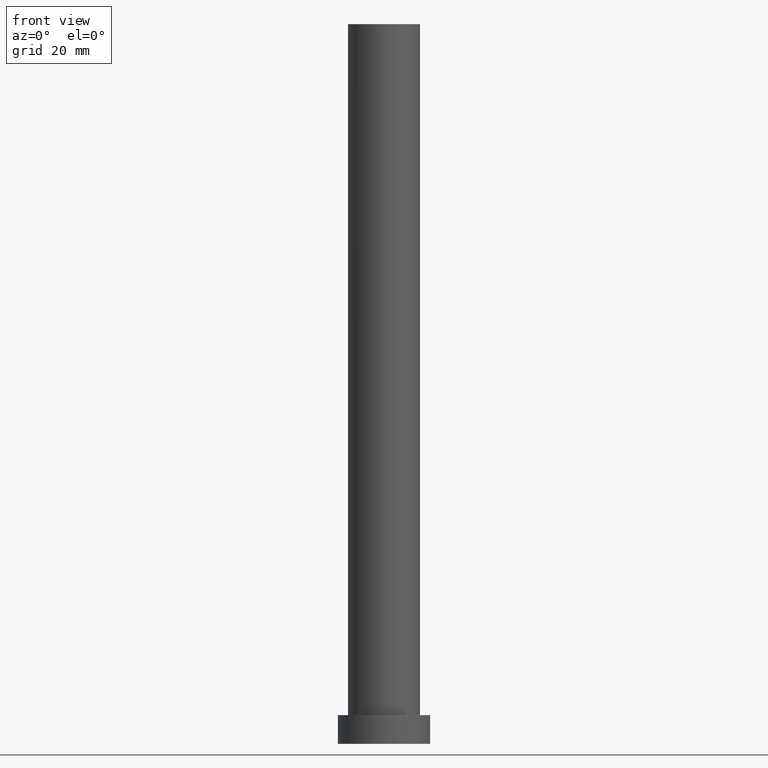
[diagram: clean part render]
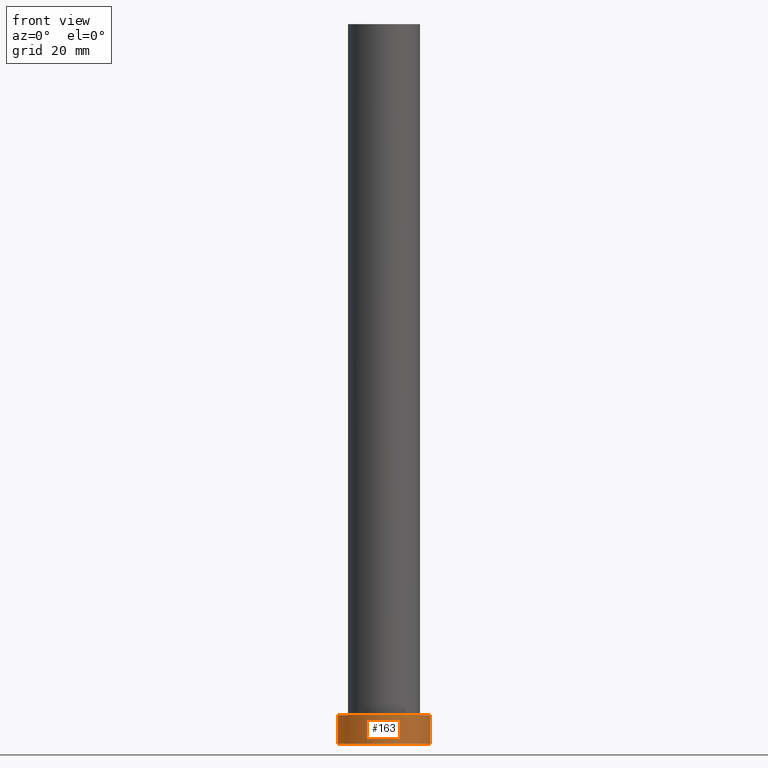
[diagram: same view with one face highlighted and labeled with its STEP entity id]
A machine part, front view. The second image highlights one B-rep face of the part: STEP entity #163.
In plain terms, the highlighted cylindrical surface (partial cylindrical patch) has radius 16 mm, axis along (-0, -0, -1).
Its self-contained STEP definition (entity closure, byte-faithful):
#12 = VERTEX_POINT ( 'NONE', #180 ) ;
#18 = VECTOR ( 'NONE', #109, 1000.000000000000000 ) ;
#34 = LINE ( 'NONE', #94, #18 ) ;
#36 = CARTESIAN_POINT ( 'NONE',  ( 16.00000000000000000, 1.959434878635765131E-15, 10.00000000000000000 ) ) ;
#37 = CIRCLE ( 'NONE', #245, 16.00000000000000000 ) ;
#38 = DIRECTION ( 'NONE',  ( 0.000000000000000000, 0.000000000000000000, 1.000000000000000000 ) ) ;
#52 = CARTESIAN_POINT ( 'NONE',  ( 0.000000000000000000, 0.000000000000000000, 10.00000000000000000 ) ) ;
#54 = CYLINDRICAL_SURFACE ( 'NONE', #252, 16.00000000000000000 ) ;
#59 = AXIS2_PLACEMENT_3D ( 'NONE', #212, #38, #73 ) ;
#62 = VERTEX_POINT ( 'NONE', #95 ) ;
#70 = DIRECTION ( 'NONE',  ( 1.000000000000000000, 0.000000000000000000, 0.000000000000000000 ) ) ;
#73 = DIRECTION ( 'NONE',  ( 1.000000000000000000, 0.000000000000000000, 0.000000000000000000 ) ) ;
#79 = EDGE_CURVE ( 'NONE', #62, #89, #37, .T. ) ;
#89 = VERTEX_POINT ( 'NONE', #36 ) ;
#94 = CARTESIAN_POINT ( 'NONE',  ( 16.00000000000000000, 1.959434878635765131E-15, 10.00000000000000000 ) ) ;
#95 = CARTESIAN_POINT ( 'NONE',  ( -16.00000000000000000, 0.000000000000000000, 10.00000000000000000 ) ) ;
#97 = DIRECTION ( 'NONE',  ( -1.000000000000000000, 0.000000000000000000, 0.000000000000000000 ) ) ;
#108 = ORIENTED_EDGE ( 'NONE', *, *, #182, .F. ) ;
#109 = DIRECTION ( 'NONE',  ( -0.000000000000000000, -0.000000000000000000, -1.000000000000000000 ) ) ;
#128 = EDGE_LOOP ( 'NONE', ( #108, #144, #225, #151 ) ) ;
#129 = CARTESIAN_POINT ( 'NONE',  ( 16.00000000000000000, 1.959434878635765131E-15, 0.000000000000000000 ) ) ;
#135 = DIRECTION ( 'NONE',  ( -0.000000000000000000, -0.000000000000000000, -1.000000000000000000 ) ) ;
#140 = CIRCLE ( 'NONE', #59, 16.00000000000000000 ) ;
#144 = ORIENTED_EDGE ( 'NONE', *, *, #79, .F. ) ;
#151 = ORIENTED_EDGE ( 'NONE', *, *, #169, .T. ) ;
#152 = LINE ( 'NONE', #249, #198 ) ;
#163 = ADVANCED_FACE ( 'NONE', ( #230 ), #54, .T. ) ;
#169 = EDGE_CURVE ( 'NONE', #12, #222, #140, .T. ) ;
#172 = DIRECTION ( 'NONE',  ( 0.000000000000000000, 0.000000000000000000, 1.000000000000000000 ) ) ;
#180 = CARTESIAN_POINT ( 'NONE',  ( -16.00000000000000000, 0.000000000000000000, 0.000000000000000000 ) ) ;
#182 = EDGE_CURVE ( 'NONE', #89, #222, #34, .T. ) ;
#198 = VECTOR ( 'NONE', #229, 1000.000000000000000 ) ;
#212 = CARTESIAN_POINT ( 'NONE',  ( 0.000000000000000000, 0.000000000000000000, 0.000000000000000000 ) ) ;
#221 = EDGE_CURVE ( 'NONE', #62, #12, #152, .T. ) ;
#222 = VERTEX_POINT ( 'NONE', #129 ) ;
#225 = ORIENTED_EDGE ( 'NONE', *, *, #221, .T. ) ;
#229 = DIRECTION ( 'NONE',  ( -0.000000000000000000, -0.000000000000000000, -1.000000000000000000 ) ) ;
#230 = FACE_OUTER_BOUND ( 'NONE', #128, .T. ) ;
#235 = CARTESIAN_POINT ( 'NONE',  ( 0.000000000000000000, 0.000000000000000000, 10.00000000000000000 ) ) ;
#245 = AXIS2_PLACEMENT_3D ( 'NONE', #235, #172, #70 ) ;
#249 = CARTESIAN_POINT ( 'NONE',  ( -16.00000000000000000, 0.000000000000000000, 10.00000000000000000 ) ) ;
#252 = AXIS2_PLACEMENT_3D ( 'NONE', #52, #135, #97 ) ;